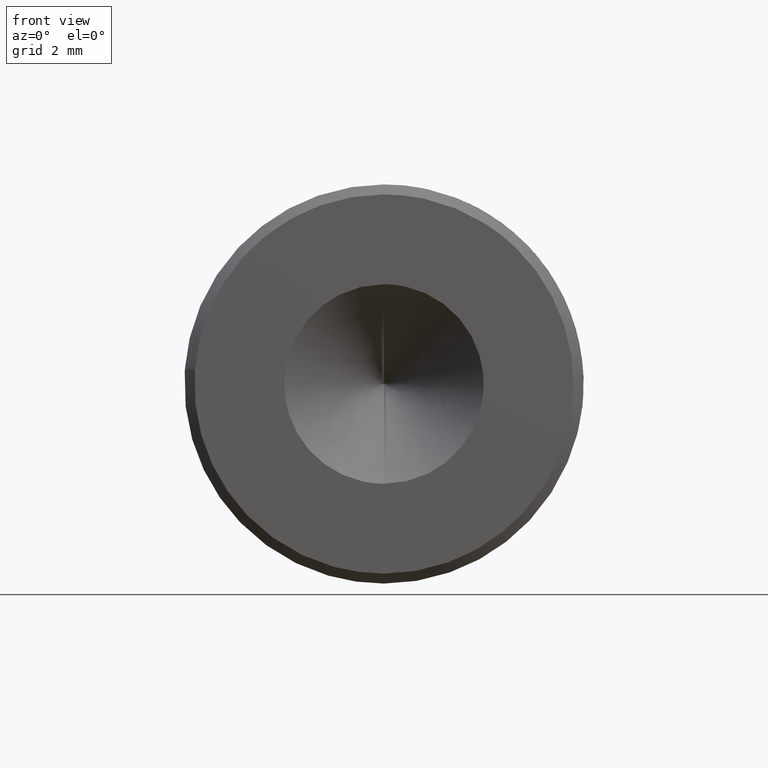
[diagram: clean part render]
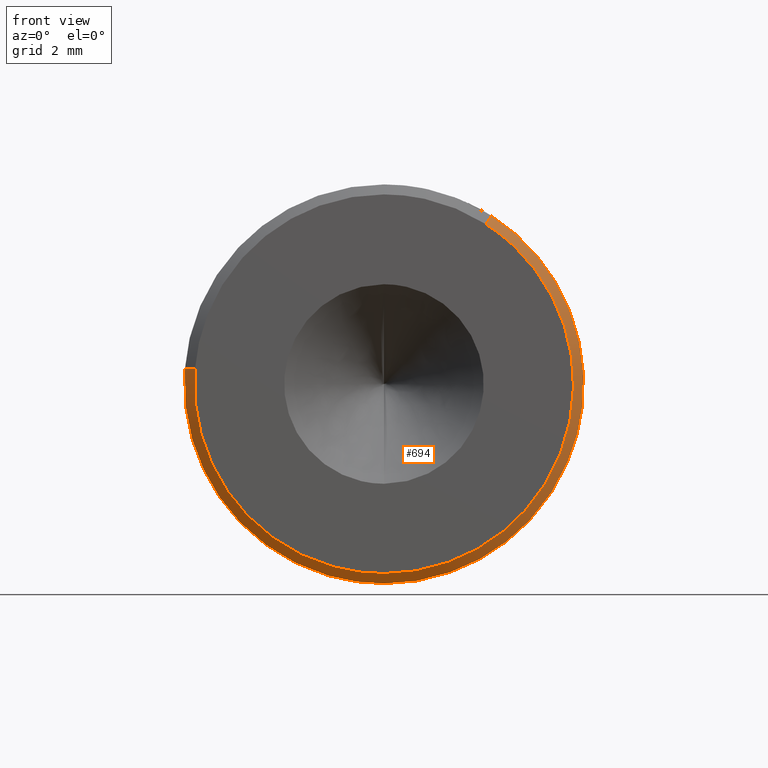
[diagram: same view with one face highlighted and labeled with its STEP entity id]
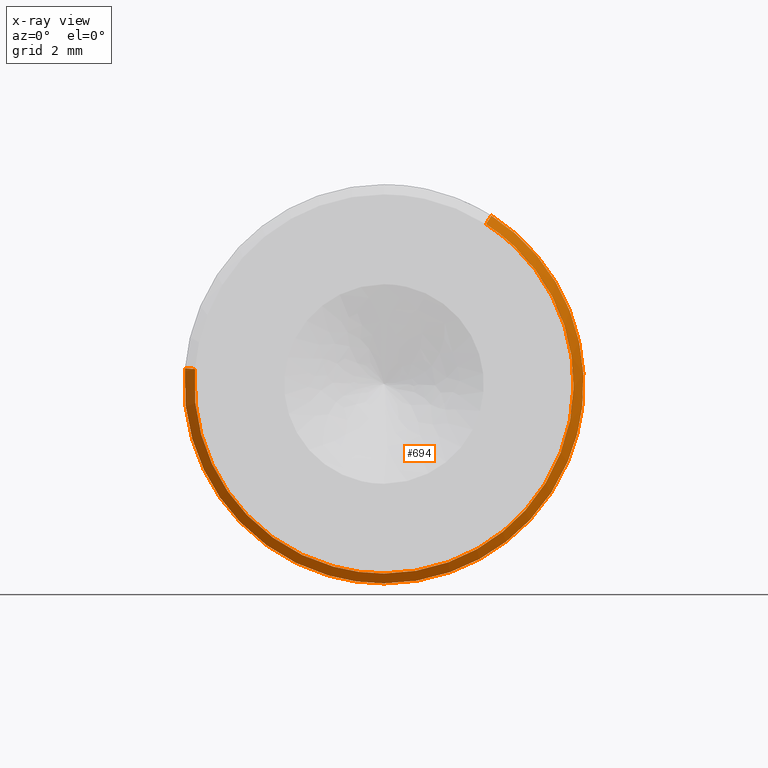
[diagram: x-ray of the same camera — body ghosted, the highlighted face saturated]
A machine part, front view. The second image highlights one B-rep face of the part: STEP entity #694.
The next image is the same camera in x-ray: the body ghosted, the highlighted face saturated — about 0% of this face is hidden behind the body in this view.
In plain terms, the highlighted face is a freeform B-spline surface patch.
Its self-contained STEP definition (entity closure, byte-faithful):
#558=CARTESIAN_POINT('',(3.061716166097038,-0.007499875000003,4.799006300124637));
#559=CARTESIAN_POINT('',(5.943115722253526,-0.007499875000003,2.960703316058953));
#560=CARTESIAN_POINT('',(5.674952894270231,-0.007499875000003,-0.446628478928382));
#561=CARTESIAN_POINT('',(5.228324415341852,-0.007499875000003,-6.121581373198612));
#562=CARTESIAN_POINT('',(-0.446628478928379,-0.007499875000003,-5.674952894270233));
#563=CARTESIAN_POINT('',(-6.121581373198610,-0.007499875000003,-5.228324415341854));
#564=CARTESIAN_POINT('',(-5.674952894270231,-0.007499875000003,0.446628478928377));
#565=CARTESIAN_POINT('',(3.231240578135852,0.307682371875112,5.064722871245033));
#566=CARTESIAN_POINT('',(6.272180581253172,0.307682371875112,3.124634739367886));
#567=CARTESIAN_POINT('',(5.989169823782511,0.307682371875112,-0.471357887594189));
#568=CARTESIAN_POINT('',(5.517811936188325,0.307682371875112,-6.460527711376701));
#569=CARTESIAN_POINT('',(-0.471357887594187,0.307682371875112,-5.989169823782514));
#570=CARTESIAN_POINT('',(-6.460527711376698,0.307682371875112,-5.517811936188327));
#571=CARTESIAN_POINT('',(-5.989169823782511,0.307682371875112,0.471357887594184));
#579=(BOUNDED_SURFACE()B_SPLINE_SURFACE(2,1,((#558,#565),(#559,#566),(#560,#567),(#561,#568),(#562,#569),(#563,#570),(#564,#571)),.UNSPECIFIED.,.F.,.F.,.U.)B_SPLINE_SURFACE_WITH_KNOTS((3,2,2,3),(2,2),(0.0,6.768628825710591,16.722494745873231,26.676360666035858),(0.0,0.445739465596589),.UNSPECIFIED.)GEOMETRIC_REPRESENTATION_ITEM()RATIONAL_B_SPLINE_SURFACE(((0.872532871172386,0.872532871172386),(0.800832611206852,0.800832611206852),(1.0,1.0),(0.707106781186548,0.707106781186548),(1.0,1.0),(0.707106781186548,0.707106781186548),(1.0,1.0)))REPRESENTATION_ITEM('')SURFACE());
#580=CARTESIAN_POINT('',(5.958059093062108,0.299995000000109,-0.708201838156283));
#581=VERTEX_POINT('',#580);
#582=CARTESIAN_POINT('',(3.227105836379637,0.299995000000160,5.058241979266022));
#583=VERTEX_POINT('',#582);
#584=CARTESIAN_POINT('',(5.958059093062108,0.299995000000109,-0.708201838156283));
#585=CARTESIAN_POINT('',(6.000002000000000,0.299995000000110,-0.355342943136376));
#586=CARTESIAN_POINT('',(6.000002000000000,0.299995000000109,-2.449215E-015));
#587=CARTESIAN_POINT('',(6.000001999999999,0.299995000000110,3.289163032474353));
#588=CARTESIAN_POINT('',(3.227105836379637,0.299995000000160,5.058241979266022));
#596=(BOUNDED_CURVE()B_SPLINE_CURVE(2,(#584,#585,#586,#587,#588),.UNSPECIFIED.,.F.,.U.)B_SPLINE_CURVE_WITH_KNOTS((3,2,3),(0.229562579796474,0.250000000000000,0.407950112627522),.UNSPECIFIED.)CURVE()GEOMETRIC_REPRESENTATION_ITEM()RATIONAL_B_SPLINE_CURVE((0.956026962502768,0.976056072849385,1.0,0.814949932402311,0.863729296954906))REPRESENTATION_ITEM(''));
#597=EDGE_CURVE('',#581,#583,#596,.T.);
#598=ORIENTED_EDGE('',*,*,#597,.T.);
#599=CARTESIAN_POINT('',(3.065750060495583,8.703212E-014,4.805329121566315));
#600=VERTEX_POINT('',#599);
#601=CARTESIAN_POINT('',(3.065750060495583,8.703212E-014,4.805329121566315));
#602=CARTESIAN_POINT('',(3.227105836379637,0.299995000000160,5.058241979266022));
#603=QUASI_UNIFORM_CURVE('',1,(#601,#602),.UNSPECIFIED.,.F.,.U.);
#604=EDGE_CURVE('',#600,#583,#603,.T.);
#605=ORIENTED_EDGE('',*,*,#604,.F.);
#606=CARTESIAN_POINT('',(0.0,0.0,-5.700001000000002));
#607=VERTEX_POINT('',#606);
#608=CARTESIAN_POINT('',(0.0,0.0,-5.700001000000002));
#609=CARTESIAN_POINT('',(5.700000999999999,0.0,-5.700001000000002));
#610=CARTESIAN_POINT('',(5.700000999999999,0.0,-2.449215E-015));
#611=CARTESIAN_POINT('',(5.700001000000000,0.0,3.124704387475379));
#612=CARTESIAN_POINT('',(3.065750060495584,8.703212E-014,4.805329121566315));
#620=(BOUNDED_CURVE()B_SPLINE_CURVE(2,(#608,#609,#610,#611,#612),.UNSPECIFIED.,.F.,.U.)B_SPLINE_CURVE_WITH_KNOTS((3,2,3),(0.0,0.250000000000000,0.407950112627482),.UNSPECIFIED.)CURVE()GEOMETRIC_REPRESENTATION_ITEM()RATIONAL_B_SPLINE_CURVE((1.0,0.707106781186548,1.0,0.814949932402358,0.863729296954882))REPRESENTATION_ITEM(''));
#621=EDGE_CURVE('',#607,#600,#620,.T.);
#622=ORIENTED_EDGE('',*,*,#621,.F.);
#623=CARTESIAN_POINT('',(-5.682429799196175,3.158671E-014,0.447216924108055));
#624=VERTEX_POINT('',#623);
#625=CARTESIAN_POINT('',(-5.682429799196175,3.158671E-014,0.447216924108055));
#626=CARTESIAN_POINT('',(-5.700000999999999,0.0,0.223953649234064));
#627=CARTESIAN_POINT('',(-5.700000999999999,0.0,-2.449215E-015));
#628=CARTESIAN_POINT('',(-5.700000999999999,0.0,-5.700001000000002));
#629=CARTESIAN_POINT('',(0.0,0.0,-5.700001000000002));
#637=(BOUNDED_CURVE()B_SPLINE_CURVE(2,(#625,#626,#627,#628,#629),.UNSPECIFIED.,.F.,.U.)B_SPLINE_CURVE_WITH_KNOTS((3,2,3),(0.736331300632752,0.750000000000000,1.0),.UNSPECIFIED.)CURVE()GEOMETRIC_REPRESENTATION_ITEM()RATIONAL_B_SPLINE_CURVE((0.969723356171785,0.983986122581334,1.0,0.707106781186548,1.0))REPRESENTATION_ITEM(''));
#638=EDGE_CURVE('',#624,#607,#637,.T.);
#639=ORIENTED_EDGE('',*,*,#638,.F.);
#640=CARTESIAN_POINT('',(-5.981505996233572,0.299995000000459,0.470754731287946));
#641=VERTEX_POINT('',#640);
#642=CARTESIAN_POINT('',(-5.682429799196175,3.158671E-014,0.447216924108055));
#643=CARTESIAN_POINT('',(-5.981505996233572,0.299995000000459,0.470754731287946));
#644=QUASI_UNIFORM_CURVE('',1,(#642,#643),.UNSPECIFIED.,.F.,.U.);
#645=EDGE_CURVE('',#624,#641,#644,.T.);
#646=ORIENTED_EDGE('',*,*,#645,.T.);
#647=CARTESIAN_POINT('',(-5.988810417132486,0.299995000000109,0.366289213113319));
#648=VERTEX_POINT('',#647);
#649=CARTESIAN_POINT('',(-5.981505996233572,0.299995000000459,0.470754731287946));
#650=CARTESIAN_POINT('',(-5.985614293693231,0.299995000000110,0.418553862644597));
#651=CARTESIAN_POINT('',(-5.988810417132486,0.299995000000110,0.366289213113319));
#659=(BOUNDED_CURVE()B_SPLINE_CURVE(2,(#649,#650,#651),.UNSPECIFIED.,.F.,.U.)B_SPLINE_CURVE_WITH_KNOTS((3,3),(0.736331300632615,0.739333023197622),.UNSPECIFIED.)CURVE()GEOMETRIC_REPRESENTATION_ITEM()RATIONAL_B_SPLINE_CURVE((0.969723356171498,0.972855539170087,0.976072172312806))REPRESENTATION_ITEM(''));
#660=EDGE_CURVE('',#641,#648,#659,.T.);
#661=ORIENTED_EDGE('',*,*,#660,.T.);
#662=CARTESIAN_POINT('',(0.0,0.299995000000109,-6.000002000000003));
#663=VERTEX_POINT('',#662);
#664=CARTESIAN_POINT('',(-5.988810417132486,0.299995000000110,0.366289213113319));
#665=CARTESIAN_POINT('',(-6.000002000000000,0.299995000000110,0.183315580096619));
#666=CARTESIAN_POINT('',(-6.000002000000000,0.299995000000109,-2.449215E-015));
#667=CARTESIAN_POINT('',(-6.000002000000000,0.299995000000110,-6.000002000000003));
#668=CARTESIAN_POINT('',(0.0,0.299995000000109,-6.000002000000003));
#676=(BOUNDED_CURVE()B_SPLINE_CURVE(2,(#664,#665,#666,#667,#668),.UNSPECIFIED.,.F.,.U.)B_SPLINE_CURVE_WITH_KNOTS((3,2,3),(0.739333023197622,0.750000000000000,1.0),.UNSPECIFIED.)CURVE()GEOMETRIC_REPRESENTATION_ITEM()RATIONAL_B_SPLINE_CURVE((0.976072172312806,0.987502859317372,1.0,0.707106781186548,1.0))REPRESENTATION_ITEM(''));
#677=EDGE_CURVE('',#648,#663,#676,.T.);
#678=ORIENTED_EDGE('',*,*,#677,.T.);
#679=CARTESIAN_POINT('',(0.0,0.299995000000109,-6.000002000000003));
#680=CARTESIAN_POINT('',(5.329052306921041,0.299995000000110,-6.000002000000005));
#681=CARTESIAN_POINT('',(5.958059093062108,0.299995000000109,-0.708201838156283));
#689=(BOUNDED_CURVE()B_SPLINE_CURVE(2,(#679,#680,#681),.UNSPECIFIED.,.F.,.U.)B_SPLINE_CURVE_WITH_KNOTS((3,3),(0.0,0.229562579796474),.UNSPECIFIED.)CURVE()GEOMETRIC_REPRESENTATION_ITEM()RATIONAL_B_SPLINE_CURVE((1.0,0.731050708337162,0.956026962502768))REPRESENTATION_ITEM(''));
#690=EDGE_CURVE('',#663,#581,#689,.T.);
#691=ORIENTED_EDGE('',*,*,#690,.T.);
#692=EDGE_LOOP('',(#598,#605,#622,#639,#646,#661,#678,#691));
#693=FACE_OUTER_BOUND('',#692,.T.);
#694=ADVANCED_FACE('',(#693),#579,.T.);